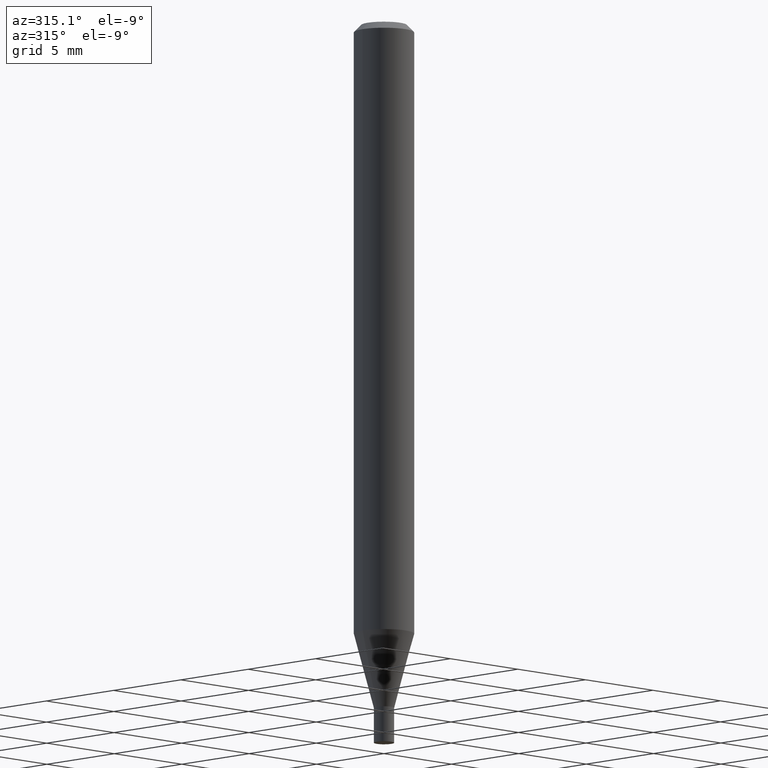
[diagram: clean part render]
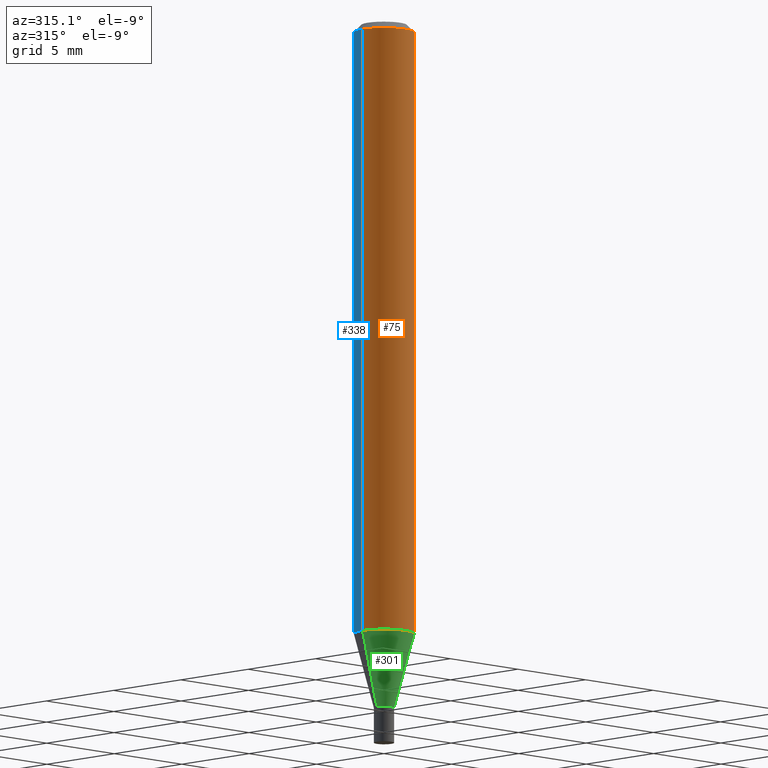
[diagram: same view with three faces highlighted in distinct colors, each labeled with its STEP entity id]
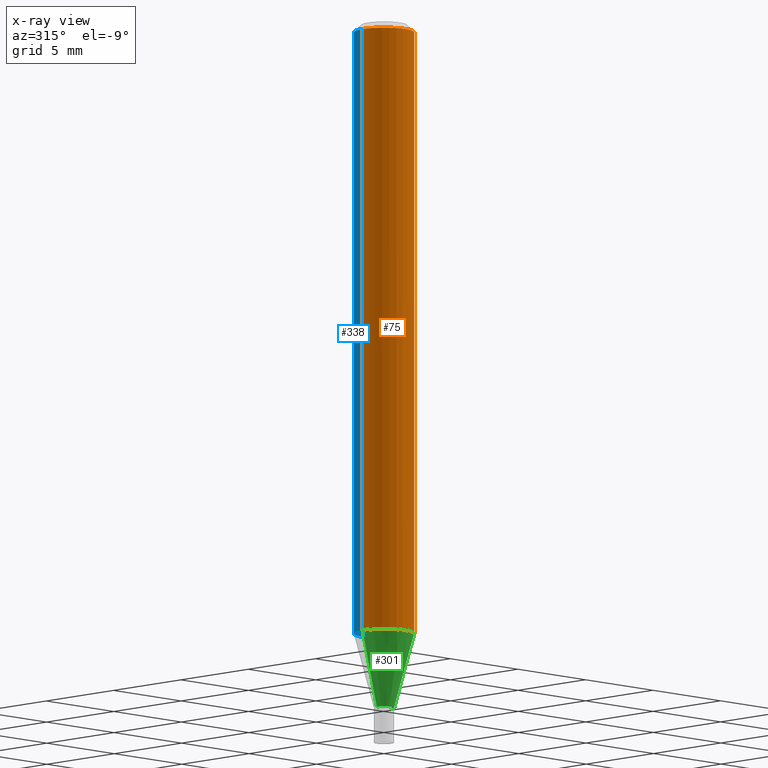
[diagram: x-ray of the same camera — body ghosted, the three highlighted faces saturated]
A machine part, auxiliary view with three faces highlighted in distinct colors.
The next image is the same camera in x-ray (body ghosted, the three faces saturated) — at least one of them is partly hidden behind the body in this view.
Their STEP definitions:

[orange] entity #75 — the highlighted cylindrical surface (edge-blend (fillet) strip) has radius 1.5875 mm, axis along (-0, 0, 1).
#2 = CARTESIAN_POINT ( 'NONE',  ( 3.110929512356370285E-29, -4.441582861894159323E-15, -1.272119891485891996 ) ) ;
#6 = DIRECTION ( 'NONE',  ( 1.000000000000000000, -6.982962677686262766E-15, 0.000000000000000000 ) ) ;
#7 = DIRECTION ( 'NONE',  ( -2.445468806185136597E-29, 3.491481338843145583E-15, 1.000000000000000000 ) ) ;
#22 = EDGE_CURVE ( 'NONE', #296, #227, #312, .T. ) ;
#34 = AXIS2_PLACEMENT_3D ( 'NONE', #432, #7, #141 ) ;
#40 = CYLINDRICAL_SURFACE ( 'NONE', #34, 0.06250000000000000000 ) ;
#47 = DIRECTION ( 'NONE',  ( -2.445468806185136877E-29, 3.491481338843145188E-15, 1.000000000000000000 ) ) ;
#54 = CARTESIAN_POINT ( 'NONE',  ( -0.06250000000000000000, 4.440892098500626162E-16, -3.074334431409316114E-30 ) ) ;
#70 = LINE ( 'NONE', #170, #382 ) ;
#75 = ADVANCED_FACE ( 'NONE', ( #95 ), #40, .T. ) ;
#88 = ORIENTED_EDGE ( 'NONE', *, *, #371, .F. ) ;
#93 = AXIS2_PLACEMENT_3D ( 'NONE', #2, #290, #6 ) ;
#95 = FACE_OUTER_BOUND ( 'NONE', #197, .T. ) ;
#124 = VERTEX_POINT ( 'NONE', #438 ) ;
#128 = VECTOR ( 'NONE', #47, 39.37007874015748143 ) ;
#135 = EDGE_CURVE ( 'NONE', #124, #227, #70, .T. ) ;
#141 = DIRECTION ( 'NONE',  ( 1.000000000000000000, -6.982962677686266711E-15, 4.876176775795935793E-29 ) ) ;
#163 = DIRECTION ( 'NONE',  ( -2.445468806185136597E-29, 3.491481338843145583E-15, 1.000000000000000000 ) ) ;
#168 = VERTEX_POINT ( 'NONE', #433 ) ;
#170 = CARTESIAN_POINT ( 'NONE',  ( 0.06250000000000000000, -4.364351673553916694E-16, 3.047610484872459871E-30 ) ) ;
#186 = ORIENTED_EDGE ( 'NONE', *, *, #431, .T. ) ;
#197 = EDGE_LOOP ( 'NONE', ( #88, #186, #268, #334 ) ) ;
#203 = AXIS2_PLACEMENT_3D ( 'NONE', #352, #163, #456 ) ;
#223 = CARTESIAN_POINT ( 'NONE',  ( -0.06250000000000000000, -1.802888331138340782E-15, -0.01499999999999999944 ) ) ;
#227 = VERTEX_POINT ( 'NONE', #464 ) ;
#255 = LINE ( 'NONE', #54, #128 ) ;
#268 = ORIENTED_EDGE ( 'NONE', *, *, #135, .T. ) ;
#290 = DIRECTION ( 'NONE',  ( -2.445468806185136597E-29, 3.491481338843145583E-15, 1.000000000000000000 ) ) ;
#296 = VERTEX_POINT ( 'NONE', #223 ) ;
#312 = CIRCLE ( 'NONE', #203, 0.06250000000000000000 ) ;
#334 = ORIENTED_EDGE ( 'NONE', *, *, #22, .F. ) ;
#352 = CARTESIAN_POINT ( 'NONE',  ( 3.668203209277705088E-31, -5.237222008264718399E-17, -0.01499999999999999944 ) ) ;
#361 = DIRECTION ( 'NONE',  ( -2.445468806185136877E-29, 3.491481338843145188E-15, 1.000000000000000000 ) ) ;
#371 = EDGE_CURVE ( 'NONE', #168, #296, #255, .T. ) ;
#382 = VECTOR ( 'NONE', #361, 39.37007874015748143 ) ;
#416 = CIRCLE ( 'NONE', #93, 0.06250000000000000000 ) ;
#431 = EDGE_CURVE ( 'NONE', #168, #124, #416, .T. ) ;
#432 = CARTESIAN_POINT ( 'NONE',  ( 0.000000000000000000, 0.000000000000000000, 0.000000000000000000 ) ) ;
#433 = CARTESIAN_POINT ( 'NONE',  ( -0.06250000000000000000, -3.997493652044096706E-15, -1.272119891485891996 ) ) ;
#438 = CARTESIAN_POINT ( 'NONE',  ( 0.06250000000000000000, -4.878018029249550992E-15, -1.272119891485891996 ) ) ;
#456 = DIRECTION ( 'NONE',  ( 1.000000000000000000, -6.982962677686266711E-15, 0.000000000000000000 ) ) ;
#464 = CARTESIAN_POINT ( 'NONE',  ( 0.06250000000000000000, -4.888073874380388472E-16, -0.01499999999999999944 ) ) ;

[blue] entity #338 — the highlighted cylindrical surface (edge-blend (fillet) strip) has radius 1.5875 mm, axis along (-0, 0, 1).
#15 = CYLINDRICAL_SURFACE ( 'NONE', #162, 0.06250000000000000000 ) ;
#25 = DIRECTION ( 'NONE',  ( -2.445468806185136597E-29, 3.491481338843145583E-15, 1.000000000000000000 ) ) ;
#46 = DIRECTION ( 'NONE',  ( -2.445468806185136597E-29, 3.491481338843145583E-15, 1.000000000000000000 ) ) ;
#47 = DIRECTION ( 'NONE',  ( -2.445468806185136877E-29, 3.491481338843145188E-15, 1.000000000000000000 ) ) ;
#54 = CARTESIAN_POINT ( 'NONE',  ( -0.06250000000000000000, 4.440892098500626162E-16, -3.074334431409316114E-30 ) ) ;
#62 = EDGE_CURVE ( 'NONE', #227, #296, #63, .T. ) ;
#63 = CIRCLE ( 'NONE', #406, 0.06250000000000000000 ) ;
#70 = LINE ( 'NONE', #170, #382 ) ;
#112 = CARTESIAN_POINT ( 'NONE',  ( 0.000000000000000000, 0.000000000000000000, 0.000000000000000000 ) ) ;
#124 = VERTEX_POINT ( 'NONE', #438 ) ;
#128 = VECTOR ( 'NONE', #47, 39.37007874015748143 ) ;
#135 = EDGE_CURVE ( 'NONE', #124, #227, #70, .T. ) ;
#153 = DIRECTION ( 'NONE',  ( -2.445468806185136597E-29, 3.491481338843145583E-15, 1.000000000000000000 ) ) ;
#159 = ORIENTED_EDGE ( 'NONE', *, *, #135, .F. ) ;
#161 = DIRECTION ( 'NONE',  ( 1.000000000000000000, -6.982962677686266711E-15, 0.000000000000000000 ) ) ;
#162 = AXIS2_PLACEMENT_3D ( 'NONE', #112, #46, #182 ) ;
#168 = VERTEX_POINT ( 'NONE', #433 ) ;
#170 = CARTESIAN_POINT ( 'NONE',  ( 0.06250000000000000000, -4.364351673553916694E-16, 3.047610484872459871E-30 ) ) ;
#182 = DIRECTION ( 'NONE',  ( 1.000000000000000000, -6.982962677686266711E-15, 4.876176775795935793E-29 ) ) ;
#190 = CIRCLE ( 'NONE', #309, 0.06250000000000000000 ) ;
#223 = CARTESIAN_POINT ( 'NONE',  ( -0.06250000000000000000, -1.802888331138340782E-15, -0.01499999999999999944 ) ) ;
#227 = VERTEX_POINT ( 'NONE', #464 ) ;
#245 = CARTESIAN_POINT ( 'NONE',  ( 3.110929512356370285E-29, -4.441582861894159323E-15, -1.272119891485891996 ) ) ;
#253 = EDGE_LOOP ( 'NONE', ( #345, #299, #381, #159 ) ) ;
#255 = LINE ( 'NONE', #54, #128 ) ;
#296 = VERTEX_POINT ( 'NONE', #223 ) ;
#299 = ORIENTED_EDGE ( 'NONE', *, *, #371, .T. ) ;
#309 = AXIS2_PLACEMENT_3D ( 'NONE', #245, #153, #377 ) ;
#338 = ADVANCED_FACE ( 'NONE', ( #447 ), #15, .T. ) ;
#344 = CARTESIAN_POINT ( 'NONE',  ( 3.668203209277705088E-31, -5.237222008264718399E-17, -0.01499999999999999944 ) ) ;
#345 = ORIENTED_EDGE ( 'NONE', *, *, #365, .T. ) ;
#361 = DIRECTION ( 'NONE',  ( -2.445468806185136877E-29, 3.491481338843145188E-15, 1.000000000000000000 ) ) ;
#365 = EDGE_CURVE ( 'NONE', #124, #168, #190, .T. ) ;
#371 = EDGE_CURVE ( 'NONE', #168, #296, #255, .T. ) ;
#377 = DIRECTION ( 'NONE',  ( 1.000000000000000000, -6.982962677686262766E-15, 0.000000000000000000 ) ) ;
#381 = ORIENTED_EDGE ( 'NONE', *, *, #62, .F. ) ;
#382 = VECTOR ( 'NONE', #361, 39.37007874015748143 ) ;
#406 = AXIS2_PLACEMENT_3D ( 'NONE', #344, #25, #161 ) ;
#433 = CARTESIAN_POINT ( 'NONE',  ( -0.06250000000000000000, -3.997493652044096706E-15, -1.272119891485891996 ) ) ;
#438 = CARTESIAN_POINT ( 'NONE',  ( 0.06250000000000000000, -4.878018029249550992E-15, -1.272119891485891996 ) ) ;
#447 = FACE_OUTER_BOUND ( 'NONE', #253, .T. ) ;
#464 = CARTESIAN_POINT ( 'NONE',  ( 0.06250000000000000000, -4.888073874380388472E-16, -0.01499999999999999944 ) ) ;

[green] entity #301 — the highlighted conical surface has half-angle 15 deg.
#2 = CARTESIAN_POINT ( 'NONE',  ( 3.110929512356370285E-29, -4.441582861894159323E-15, -1.272119891485891996 ) ) ;
#6 = DIRECTION ( 'NONE',  ( 1.000000000000000000, -6.982962677686262766E-15, 0.000000000000000000 ) ) ;
#8 = EDGE_CURVE ( 'NONE', #56, #342, #374, .T. ) ;
#10 = DIRECTION ( 'NONE',  ( -2.445468806185136597E-29, 3.491481338843145583E-15, 1.000000000000000000 ) ) ;
#12 = FACE_OUTER_BOUND ( 'NONE', #460, .T. ) ;
#19 = VECTOR ( 'NONE', #326, 39.37007874015748854 ) ;
#21 = DIRECTION ( 'NONE',  ( 1.000000000000000000, -6.982962677686265922E-15, 0.000000000000000000 ) ) ;
#39 = EDGE_CURVE ( 'NONE', #56, #168, #160, .T. ) ;
#56 = VERTEX_POINT ( 'NONE', #384 ) ;
#86 = VECTOR ( 'NONE', #306, 39.37007874015748854 ) ;
#93 = AXIS2_PLACEMENT_3D ( 'NONE', #2, #290, #6 ) ;
#101 = ORIENTED_EDGE ( 'NONE', *, *, #39, .F. ) ;
#122 = DIRECTION ( 'NONE',  ( 1.000000000000000000, -6.982962677686265922E-15, 0.000000000000000000 ) ) ;
#124 = VERTEX_POINT ( 'NONE', #438 ) ;
#131 = ORIENTED_EDGE ( 'NONE', *, *, #8, .T. ) ;
#140 = EDGE_CURVE ( 'NONE', #342, #124, #314, .T. ) ;
#150 = CARTESIAN_POINT ( 'NONE',  ( 0.02099999999999992498, -5.128986086760580222E-15, -1.427000000000000046 ) ) ;
#155 = ORIENTED_EDGE ( 'NONE', *, *, #431, .F. ) ;
#160 = LINE ( 'NONE', #347, #86 ) ;
#168 = VERTEX_POINT ( 'NONE', #433 ) ;
#195 = AXIS2_PLACEMENT_3D ( 'NONE', #252, #10, #122 ) ;
#229 = CARTESIAN_POINT ( 'NONE',  ( 3.489683986426190072E-29, -4.982343870529169189E-15, -1.427000000000000046 ) ) ;
#252 = CARTESIAN_POINT ( 'NONE',  ( 3.489683986426190072E-29, -4.982343870529169189E-15, -1.427000000000000046 ) ) ;
#290 = DIRECTION ( 'NONE',  ( -2.445468806185136597E-29, 3.491481338843145583E-15, 1.000000000000000000 ) ) ;
#301 = ADVANCED_FACE ( 'NONE', ( #12 ), #436, .T. ) ;
#306 = DIRECTION ( 'NONE',  ( -0.2588190451025217387, 5.211531920934551042E-15, 0.9659258262890679791 ) ) ;
#307 = DIRECTION ( 'NONE',  ( -2.445468806185136597E-29, 3.491481338843145583E-15, 1.000000000000000000 ) ) ;
#314 = LINE ( 'NONE', #462, #19 ) ;
#326 = DIRECTION ( 'NONE',  ( 0.2588190451025217387, 1.565188264969619207E-15, 0.9659258262890679791 ) ) ;
#342 = VERTEX_POINT ( 'NONE', #150 ) ;
#347 = CARTESIAN_POINT ( 'NONE',  ( -0.02099999999999992498, -4.833129896019548018E-15, -1.427000000000000046 ) ) ;
#374 = CIRCLE ( 'NONE', #451, 0.02099999999999992498 ) ;
#384 = CARTESIAN_POINT ( 'NONE',  ( -0.02099999999999992498, -4.415311774031822362E-15, -1.427000000000000046 ) ) ;
#416 = CIRCLE ( 'NONE', #93, 0.06250000000000000000 ) ;
#430 = ORIENTED_EDGE ( 'NONE', *, *, #140, .T. ) ;
#431 = EDGE_CURVE ( 'NONE', #168, #124, #416, .T. ) ;
#433 = CARTESIAN_POINT ( 'NONE',  ( -0.06250000000000000000, -3.997493652044096706E-15, -1.272119891485891996 ) ) ;
#436 = CONICAL_SURFACE ( 'NONE', #195, 0.02099999999999992498, 0.2617993877991504625 ) ;
#438 = CARTESIAN_POINT ( 'NONE',  ( 0.06250000000000000000, -4.878018029249550992E-15, -1.272119891485891996 ) ) ;
#451 = AXIS2_PLACEMENT_3D ( 'NONE', #229, #307, #21 ) ;
#460 = EDGE_LOOP ( 'NONE', ( #101, #131, #430, #155 ) ) ;
#462 = CARTESIAN_POINT ( 'NONE',  ( 0.02099999999999992498, -5.128986086760580222E-15, -1.427000000000000046 ) ) ;